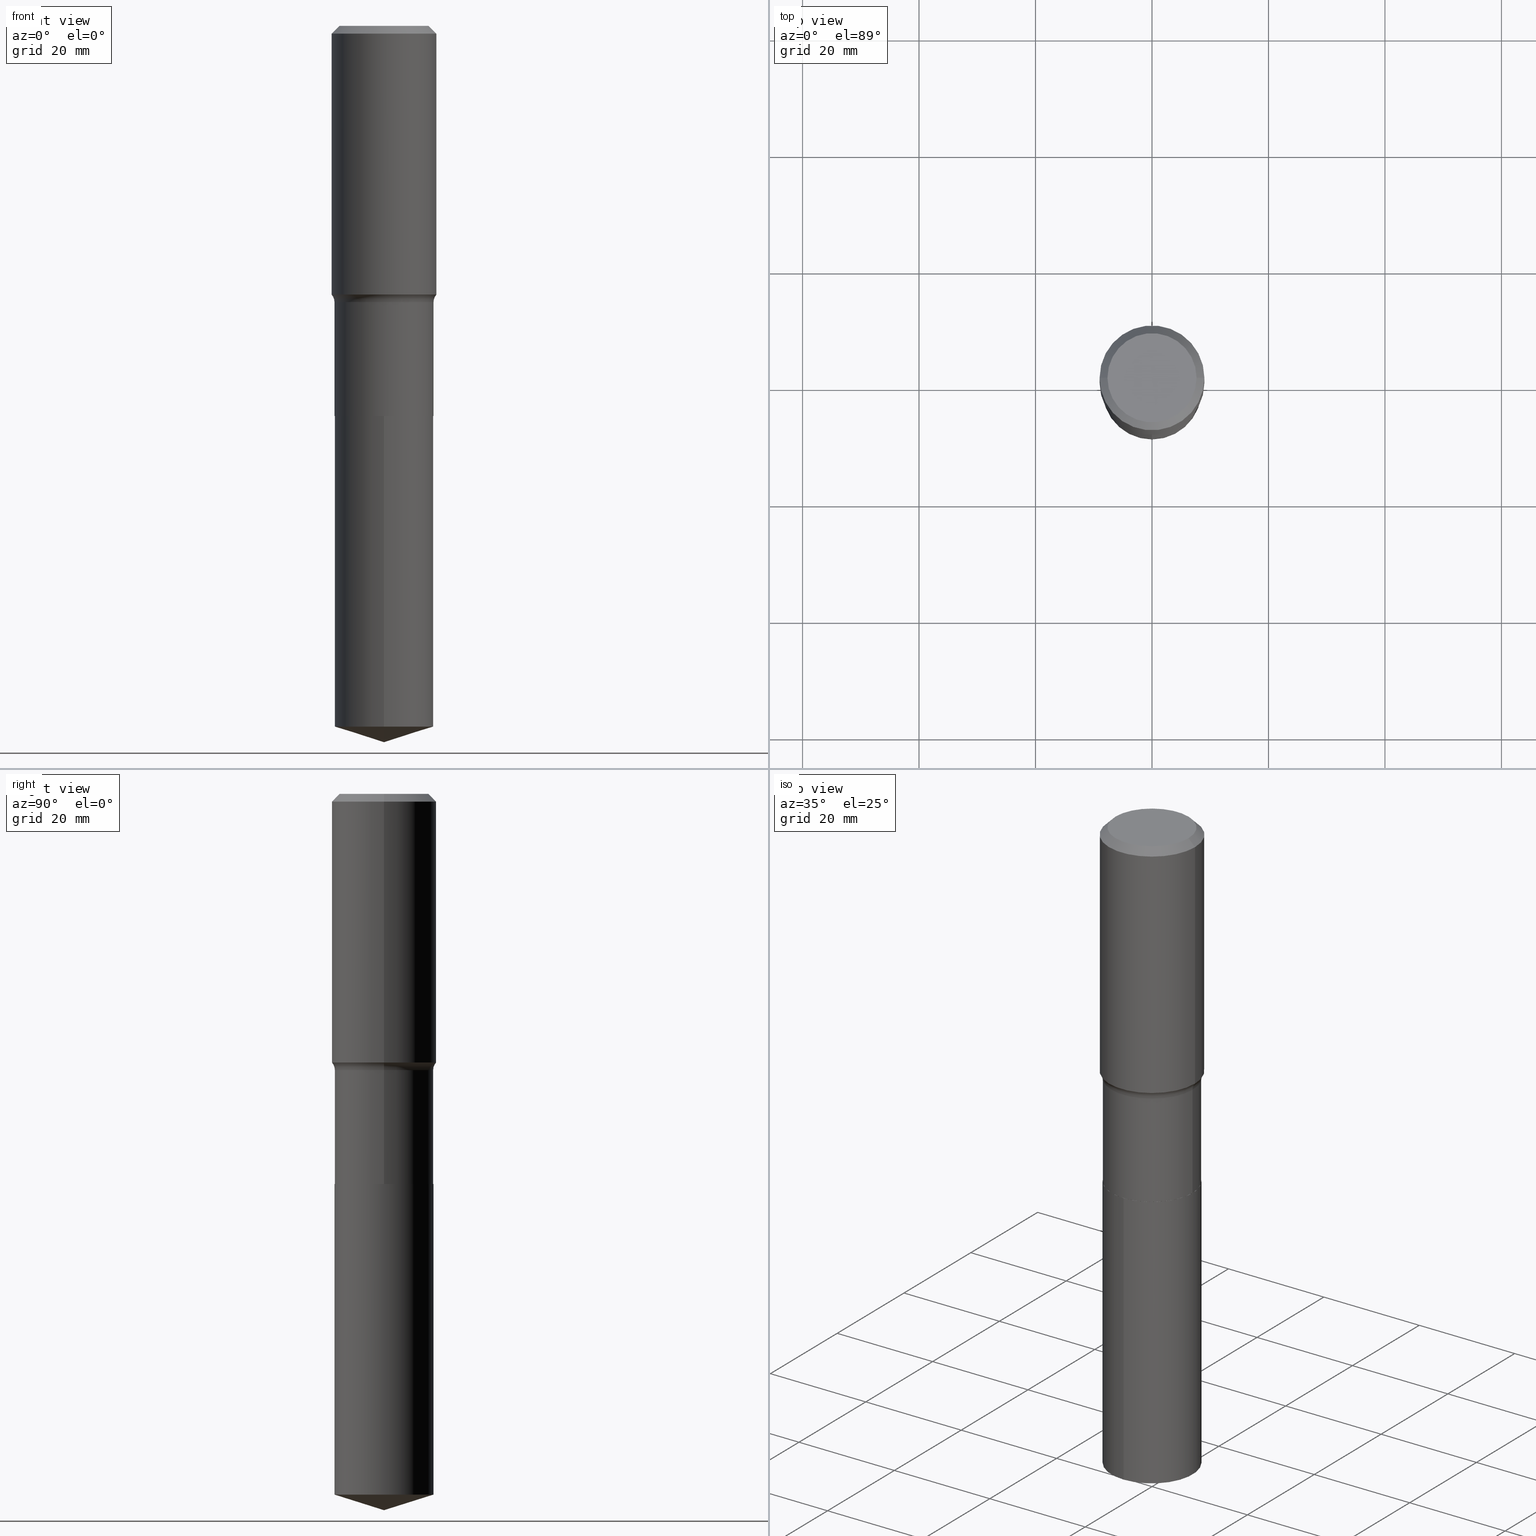
[diagram: canonical four-view strip — front | top / right | iso, engineering-drawing reading convention]
A machine part, canonical four-view strip (front | top / right | iso — engineering-drawing reading convention). The complete STEP part file that produces these views, byte-faithful:
ISO-10303-21;
HEADER;
FILE_DESCRIPTION (( 'STEP AP203' ),
    '1' );
FILE_NAME ('63206.STEP',
    '2024-04-19T15:04:47',
    ( '' ),
    ( '' ),
    'SwSTEP 2.0',
    'SolidWorks 2023',
    '' );
FILE_SCHEMA (( 'CONFIG_CONTROL_DESIGN' ));
ENDSEC;

DATA;
#1 = TOROIDAL_SURFACE ( 'NONE', #149, 0.4126499999999999613, 0.07799999999999999989 ) ;
#2 = ORIENTED_EDGE ( 'NONE', *, *, #280, .T. ) ;
#3 = EDGE_LOOP ( 'NONE', ( #252, #490, #178 ) ) ;
#4 = ADVANCED_FACE ( 'NONE', ( #226 ), #34, .T. ) ;
#5 = CARTESIAN_POINT ( 'NONE',  ( 0.3543500000000001648, -8.815927369643196771E-15, -1.816281952950733025 ) ) ;
#6 = DIRECTION ( 'NONE',  ( 1.000000000000000000, -6.982962677686266711E-15, 4.876239486148337140E-29 ) ) ;
#7 = DIRECTION ( 'NONE',  ( 1.000000000000000000, -6.982962677686266711E-15, 4.876239486148337140E-29 ) ) ;
#8 = LOCAL_TIME ( 11, 4, 47.00000000000000000, #75 ) ;
#9 = CARTESIAN_POINT ( 'NONE',  ( -0.3346499999999999475, -5.487428746790776908E-15, -1.868099999999999650 ) ) ;
#10 = CARTESIAN_POINT ( 'NONE',  ( 6.449434882552060429E-29, -9.208083734931026389E-15, -2.637299999999999756 ) ) ;
#11 = CARTESIAN_POINT ( 'NONE',  ( 1.158368942246441187E-28, -1.653975476720467743E-14, -4.736985260301649348 ) ) ;
#12 = CARTESIAN_POINT ( 'NONE',  ( 0.3543499999999999983, -2.659993786700990170E-15, -0.05315250000000035224 ) ) ;
#13 = DIRECTION ( 'NONE',  ( 0.000000000000000000, 0.000000000000000000, 1.000000000000000000 ) ) ;
#14 = DIRECTION ( 'NONE',  ( 6.982962677686265922E-15, 1.000000000000000000, -3.491795331371053776E-15 ) ) ;
#15 = AXIS2_PLACEMENT_3D ( 'NONE', #406, #77, #350 ) ;
#16 = CARTESIAN_POINT ( 'NONE',  ( -2.336848460087593123E-15, -0.3346500000000164898, -4.736985260301648459 ) ) ;
#17 = DIRECTION ( 'NONE',  ( -2.445468806185136597E-29, 3.491481338843145583E-15, 1.000000000000000000 ) ) ;
#18 = FACE_OUTER_BOUND ( 'NONE', #285, .T. ) ;
#19 = DIRECTION ( 'NONE',  ( 2.438088387897960049E-29, -3.491481338843145188E-15, -1.000000000000000000 ) ) ;
#20 = ORIENTED_EDGE ( 'NONE', *, *, #274, .T. ) ;
#21 = AXIS2_PLACEMENT_3D ( 'NONE', #313, #318, #140 ) ;
#22 = CC_DESIGN_APPROVAL ( #463, ( #338 ) ) ;
#23 = APPROVAL_ROLE ( '' ) ;
#24 = ORIENTED_EDGE ( 'NONE', *, *, #225, .T. ) ;
#25 = PERSON_AND_ORGANIZATION_ROLE ( 'creator' ) ;
#26 = ORIENTED_EDGE ( 'NONE', *, *, #288, .T. ) ;
#27 = PRODUCT_DEFINITION ( 'UNKNOWN', '', #338, #420 ) ;
#28 = APPROVAL_STATUS ( 'not_yet_approved' ) ;
#29 = DIRECTION ( 'NONE',  ( -2.445468806185136877E-29, 3.491481338843145188E-15, 1.000000000000000000 ) ) ;
#30 = AXIS2_PLACEMENT_3D ( 'NONE', #10, #137, #384 ) ;
#31 = COORDINATED_UNIVERSAL_TIME_OFFSET ( 5, 0, .BEHIND. ) ;
#32 = APPROVAL_PERSON_ORGANIZATION ( #296, #463, #23 ) ;
#33 = EDGE_LOOP ( 'NONE', ( #291, #482, #73, #185 ) ) ;
#34 = CYLINDRICAL_SURFACE ( 'NONE', #343, 0.3346500000000000030 ) ;
#35 = CIRCLE ( 'NONE', #319, 0.3346499999999999475 ) ;
#36 = AXIS2_PLACEMENT_3D ( 'NONE', #399, #218, #70 ) ;
#37 = ORIENTED_EDGE ( 'NONE', *, *, #120, .F. ) ;
#38 = DIRECTION ( 'NONE',  ( -2.445468806185136597E-29, 3.491481338843145583E-15, 1.000000000000000000 ) ) ;
#39 = SECURITY_CLASSIFICATION ( '', '', #286 ) ;
#40 = EDGE_CURVE ( 'NONE', #190, #192, #125, .T. ) ;
#41 = VERTEX_POINT ( 'NONE', #5 ) ;
#42 = CARTESIAN_POINT ( 'NONE',  ( 0.3346499999999999475, -2.336848460087708691E-15, 1.631812558020109519E-29 ) ) ;
#43 = CARTESIAN_POINT ( 'NONE',  ( 4.568380276834452925E-29, -6.522436289092878802E-15, -1.868099999999999650 ) ) ;
#44 = CC_DESIGN_PERSON_AND_ORGANIZATION_ASSIGNMENT ( #401, #183, ( #39 ) ) ;
#45 = CC_DESIGN_PERSON_AND_ORGANIZATION_ASSIGNMENT ( #154, #25, ( #338 ) ) ;
#46 = DIRECTION ( 'NONE',  ( -2.445468806185136597E-29, 3.491481338843145583E-15, 1.000000000000000000 ) ) ;
#47 = DIRECTION ( 'NONE',  ( -2.445468806185136597E-29, 3.491481338843145583E-15, 1.000000000000000000 ) ) ;
#48 = CIRCLE ( 'NONE', #310, 0.3543499999999999983 ) ;
#49 = LOCAL_TIME ( 11, 4, 47.00000000000000000, #31 ) ;
#50 = DIRECTION ( 'NONE',  ( -6.982962677686266711E-15, -1.000000000000000000, 3.265319580055895186E-15 ) ) ;
#51 = MECHANICAL_CONTEXT ( 'NONE', #169, 'mechanical' ) ;
#52 = DIRECTION ( 'NONE',  ( 2.445249546374790789E-29, -3.491795331371053776E-15, -1.000000000000000000 ) ) ;
#53 =( NAMED_UNIT ( * ) PLANE_ANGLE_UNIT ( ) SI_UNIT ( $, .RADIAN. ) );
#54 = EDGE_CURVE ( 'NONE', #332, #301, #412, .T. ) ;
#55 = LINE ( 'NONE', #276, #448 ) ;
#56 = CARTESIAN_POINT ( 'NONE',  ( 1.299827807207563322E-30, -1.855809618628615256E-16, -0.05315250000000035224 ) ) ;
#57 = CARTESIAN_POINT ( 'NONE',  ( 0.000000000000000000, 0.000000000000000000, 0.000000000000000000 ) ) ;
#58 = AXIS2_PLACEMENT_3D ( 'NONE', #265, #157, #325 ) ;
#59 = ADVANCED_FACE ( 'NONE', ( #312 ), #299, .T. ) ;
#60 = CC_DESIGN_SECURITY_CLASSIFICATION ( #39, ( #338 ) ) ;
#61 = CARTESIAN_POINT ( 'NONE',  ( 6.449434882552060429E-29, -9.208083734931026389E-15, -2.637299999999999756 ) ) ;
#62 = DIRECTION ( 'NONE',  ( 1.000000000000000000, -6.982962677686268288E-15, 0.000000000000000000 ) ) ;
#63 = SHAPE_DEFINITION_REPRESENTATION ( #302, #224 ) ;
#64 = ORIENTED_EDGE ( 'NONE', *, *, #453, .T. ) ;
#65 = CIRCLE ( 'NONE', #186, 0.3543500000000002204 ) ;
#66 = VECTOR ( 'NONE', #391, 39.37007874015748143 ) ;
#67 = APPROVAL_DATE_TIME ( #369, #463 ) ;
#68 = ADVANCED_FACE ( 'NONE', ( #466 ), #474, .T. ) ;
#69 = ORIENTED_EDGE ( 'NONE', *, *, #428, .T. ) ;
#70 = DIRECTION ( 'NONE',  ( -1.000000000000000000, 7.105427357601001859E-15, 0.000000000000000000 ) ) ;
#71 = DATE_AND_TIME ( #150, #456 ) ;
#72 = CC_DESIGN_DATE_AND_TIME_ASSIGNMENT ( #339, #489, ( #27 ) ) ;
#73 = ORIENTED_EDGE ( 'NONE', *, *, #40, .T. ) ;
#74 = CARTESIAN_POINT ( 'NONE',  ( -0.3011975000000000069, 2.196041382043838255E-15, 4.101342130329452923E-18 ) ) ;
#75 = COORDINATED_UNIVERSAL_TIME_OFFSET ( 5, 0, .BEHIND. ) ;
#76 = VERTEX_POINT ( 'NONE', #12 ) ;
#77 = DIRECTION ( 'NONE',  ( -2.445249546374791350E-29, 3.491795331371053381E-15, 1.000000000000000000 ) ) ;
#78 = AXIS2_PLACEMENT_3D ( 'NONE', #314, #52, #14 ) ;
#79 = CIRCLE ( 'NONE', #383, 0.3346500000000000030 ) ;
#80 = PERSON_AND_ORGANIZATION_ROLE ( 'creator' ) ;
#81 = ORIENTED_EDGE ( 'NONE', *, *, #207, .T. ) ;
#82 = EDGE_LOOP ( 'NONE', ( #459, #122, #487, #306 ) ) ;
#83 = CONICAL_SURFACE ( 'NONE', #15, 124.8659371009154597, 1.265363707695892570 ) ;
#84 = EDGE_LOOP ( 'NONE', ( #227, #378 ) ) ;
#85 = ADVANCED_FACE ( 'NONE', ( #421 ), #484, .T. ) ;
#86 = ORIENTED_EDGE ( 'NONE', *, *, #460, .F. ) ;
#87 = DIRECTION ( 'NONE',  ( -6.982962677686266711E-15, -1.000000000000000000, 3.491481338843145583E-15 ) ) ;
#88 = CARTESIAN_POINT ( 'NONE',  ( 4.441660859178037633E-29, -6.341514544805068471E-15, -1.816281952950733025 ) ) ;
#89 = DIRECTION ( 'NONE',  ( -2.445468806185136597E-29, 3.491481338843145583E-15, 1.000000000000000000 ) ) ;
#90 = CARTESIAN_POINT ( 'NONE',  ( 0.3341500000000000581, -1.154318645434931476E-14, -2.637799999999999923 ) ) ;
#91 = DIRECTION ( 'NONE',  ( 1.000000000000000000, -6.982962677686268288E-15, 0.000000000000000000 ) ) ;
#92 = AXIS2_PLACEMENT_3D ( 'NONE', #99, #273, #358 ) ;
#93 = LINE ( 'NONE', #458, #370 ) ;
#94 = DIRECTION ( 'NONE',  ( -2.445249546374791350E-29, 3.491795331371053381E-15, 1.000000000000000000 ) ) ;
#95 = CARTESIAN_POINT ( 'NONE',  ( -2.336848460087644399E-15, -0.3346500000000092179, -2.637799999999999034 ) ) ;
#96 = CARTESIAN_POINT ( 'NONE',  ( -0.3543499999999999983, 2.288831862975267218E-15, -0.05315250000000035224 ) ) ;
#97 = DIRECTION ( 'NONE',  ( -6.982962677686266711E-15, -1.000000000000000000, 3.265319580055895186E-15 ) ) ;
#98 = DIRECTION ( 'NONE',  ( -2.445249546374791350E-29, 3.491795331371053381E-15, 1.000000000000000000 ) ) ;
#99 = CARTESIAN_POINT ( 'NONE',  ( 0.000000000000000000, 0.000000000000000000, 0.000000000000000000 ) ) ;
#100 = FACE_OUTER_BOUND ( 'NONE', #334, .T. ) ;
#101 = EDGE_CURVE ( 'NONE', #480, #223, #377, .T. ) ;
#102 = AXIS2_PLACEMENT_3D ( 'NONE', #144, #89, #138 ) ;
#103 = MANIFOLD_SOLID_BREP ( 'Body-Move/Copy2[2]', #289 ) ;
#104 = CIRCLE ( 'NONE', #300, 0.3011975000000000069 ) ;
#105 = MANIFOLD_SOLID_BREP ( 'Body-Move/Copy2[1]', #400 ) ;
#106 = APPLICATION_PROTOCOL_DEFINITION ( 'international standard', 'config_control_design', 1994, #169 ) ;
#107 = DIRECTION ( 'NONE',  ( 1.000000000000000000, -6.982962677686266711E-15, 0.000000000000000000 ) ) ;
#108 = CALENDAR_DATE ( 2024, 19, 4 ) ;
#109 = ORIENTED_EDGE ( 'NONE', *, *, #155, .F. ) ;
#110 = ADVANCED_FACE ( 'NONE', ( #100 ), #194, .T. ) ;
#111 = DIRECTION ( 'NONE',  ( -2.445249546374791350E-29, 3.491795331371053381E-15, 1.000000000000000000 ) ) ;
#112 = CALENDAR_DATE ( 2024, 19, 4 ) ;
#113 = EDGE_LOOP ( 'NONE', ( #443, #337, #256, #409 ) ) ;
#114 =( GEOMETRIC_REPRESENTATION_CONTEXT ( 3 ) GLOBAL_UNCERTAINTY_ASSIGNED_CONTEXT ( ( #335 ) ) GLOBAL_UNIT_ASSIGNED_CONTEXT ( ( #434, #53, #430 ) ) REPRESENTATION_CONTEXT ( 'NONE', 'WORKASPACE' ) );
#115 = LOCAL_TIME ( 11, 4, 47.00000000000000000, #365 ) ;
#116 = ORIENTED_EDGE ( 'NONE', *, *, #101, .T. ) ;
#117 = ORIENTED_EDGE ( 'NONE', *, *, #54, .T. ) ;
#118 = CYLINDRICAL_SURFACE ( 'NONE', #229, 0.3543500000000001648 ) ;
#119 = DATE_AND_TIME ( #112, #292 ) ;
#120 = EDGE_CURVE ( 'NONE', #373, #41, #65, .T. ) ;
#121 = AXIS2_PLACEMENT_3D ( 'NONE', #43, #38, #199 ) ;
#122 = ORIENTED_EDGE ( 'NONE', *, *, #440, .T. ) ;
#123 = ORIENTED_EDGE ( 'NONE', *, *, #470, .T. ) ;
#124 = ADVANCED_FACE ( 'NONE', ( #236 ), #136, .F. ) ;
#125 = LINE ( 'NONE', #42, #254 ) ;
#126 = DIRECTION ( 'NONE',  ( -2.445468806185136597E-29, 3.491481338843145583E-15, 1.000000000000000000 ) ) ;
#127 = AXIS2_PLACEMENT_3D ( 'NONE', #278, #98, #50 ) ;
#128 = ORGANIZATION ( 'UNSPECIFIED', 'UNSPECIFIED', '' ) ;
#129 = CARTESIAN_POINT ( 'NONE',  ( -1.002970424325033577E-46, 1.431975951230896212E-32, 4.101342130344485961E-18 ) ) ;
#130 = VERTEX_POINT ( 'NONE', #433 ) ;
#131 = DIRECTION ( 'NONE',  ( -2.445249546374791070E-29, 3.491795331371053776E-15, 1.000000000000000000 ) ) ;
#132 = DIRECTION ( 'NONE',  ( -2.445249546374791350E-29, 3.491795331371053381E-15, 1.000000000000000000 ) ) ;
#133 = LINE ( 'NONE', #437, #66 ) ;
#134 = DIRECTION ( 'NONE',  ( 1.000000000000000000, -6.982962677686266711E-15, 0.000000000000000000 ) ) ;
#135 = DIRECTION ( 'NONE',  ( -6.982962677686266711E-15, -1.000000000000000000, 3.265319580055895186E-15 ) ) ;
#136 = TOROIDAL_SURFACE ( 'NONE', #393, 0.4126499999999999613, 0.07799999999999999989 ) ;
#137 = DIRECTION ( 'NONE',  ( -2.445468806185136597E-29, 3.491481338843145583E-15, 1.000000000000000000 ) ) ;
#138 = DIRECTION ( 'NONE',  ( 1.000000000000000000, -6.982962677686268288E-15, 0.000000000000000000 ) ) ;
#139 = CARTESIAN_POINT ( 'NONE',  ( -0.3543500000000001648, 2.517808184165916180E-15, -1.743024649231826627E-29 ) ) ;
#140 = DIRECTION ( 'NONE',  ( -1.000000000000000000, 6.982962677686266711E-15, 0.000000000000000000 ) ) ;
#141 = EDGE_CURVE ( 'NONE', #130, #371, #308, .T. ) ;
#142 = DIRECTION ( 'NONE',  ( -6.982962677686266711E-15, -1.000000000000000000, 3.500519750498693388E-15 ) ) ;
#143 = CARTESIAN_POINT ( 'NONE',  ( -5.014852121625167883E-47, 7.159879756154481060E-33, 2.050671065172242981E-18 ) ) ;
#144 = CARTESIAN_POINT ( 'NONE',  ( 6.450657616955153231E-29, -9.209829475600448681E-15, -2.637799999999999923 ) ) ;
#145 = CARTESIAN_POINT ( 'NONE',  ( 0.3543500000000001648, -2.474412824838129483E-15, 1.727873240503290590E-29 ) ) ;
#146 = EDGE_CURVE ( 'NONE', #374, #76, #163, .T. ) ;
#147 = EDGE_LOOP ( 'NONE', ( #230, #24, #345, #216 ) ) ;
#148 = VERTEX_POINT ( 'NONE', #425 ) ;
#149 = AXIS2_PLACEMENT_3D ( 'NONE', #326, #275, #267 ) ;
#150 = CALENDAR_DATE ( 2024, 19, 4 ) ;
#151 = EDGE_LOOP ( 'NONE', ( #449, #191, #64, #298 ) ) ;
#152 = FACE_OUTER_BOUND ( 'NONE', #151, .T. ) ;
#153 = CARTESIAN_POINT ( 'NONE',  ( 1.158368942246441187E-28, -1.653975476720467743E-14, -4.736985260301649348 ) ) ;
#154 = PERSON_AND_ORGANIZATION ( #304, #128 ) ;
#155 = EDGE_CURVE ( 'NONE', #130, #375, #201, .T. ) ;
#156 = VERTEX_POINT ( 'NONE', #9 ) ;
#157 = DIRECTION ( 'NONE',  ( -2.445468806185136597E-29, 3.491481338843145583E-15, 1.000000000000000000 ) ) ;
#158 = CONICAL_SURFACE ( 'NONE', #21, 0.3543499999999999983, 0.7853981633974450594 ) ;
#159 = ORIENTED_EDGE ( 'NONE', *, *, #305, .F. ) ;
#160 = ADVANCED_FACE ( 'NONE', ( #171 ), #167, .F. ) ;
#161 = DIRECTION ( 'NONE',  ( -2.445249546374791350E-29, 3.491795331371053381E-15, 1.000000000000000000 ) ) ;
#162 = ORIENTED_EDGE ( 'NONE', *, *, #54, .F. ) ;
#163 = CIRCLE ( 'NONE', #435, 0.3543499999999999983 ) ;
#164 = CARTESIAN_POINT ( 'NONE',  ( 4.568380276834452925E-29, -6.522436289092878802E-15, -1.868099999999999650 ) ) ;
#165 = CARTESIAN_POINT ( 'NONE',  ( 6.450657616955153231E-29, -9.209829475600448681E-15, -2.637799999999999923 ) ) ;
#166 = CARTESIAN_POINT ( 'NONE',  ( 0.3346499999999999475, -8.859284749180587099E-15, -1.868099999999999650 ) ) ;
#167 = PLANE ( 'NONE',  #78 ) ;
#168 = EDGE_CURVE ( 'NONE', #233, #148, #193, .T. ) ;
#169 = APPLICATION_CONTEXT ( 'configuration controlled 3d designs of mechanical parts and assemblies' ) ;
#170 = CARTESIAN_POINT ( 'NONE',  ( 0.3346500000000000030, -1.154493219501873547E-14, -2.637299999999999756 ) ) ;
#171 = FACE_OUTER_BOUND ( 'NONE', #342, .T. ) ;
#172 = AXIS2_PLACEMENT_3D ( 'NONE', #56, #388, #462 ) ;
#173 = EDGE_CURVE ( 'NONE', #192, #156, #35, .T. ) ;
#174 = FACE_OUTER_BOUND ( 'NONE', #84, .T. ) ;
#175 = CARTESIAN_POINT ( 'NONE',  ( 6.450657616955153231E-29, -9.209829475600448681E-15, -2.637799999999999923 ) ) ;
#176 = DIRECTION ( 'NONE',  ( -1.000000000000000000, 6.982962677686265922E-15, -4.876176775795935793E-29 ) ) ;
#177 = ADVANCED_FACE ( 'NONE', ( #203 ), #363, .T. ) ;
#178 = ORIENTED_EDGE ( 'NONE', *, *, #225, .F. ) ;
#179 = AXIS2_PLACEMENT_3D ( 'NONE', #143, #19, #176 ) ;
#180 = APPROVAL_STATUS ( 'not_yet_approved' ) ;
#181 = CC_DESIGN_PERSON_AND_ORGANIZATION_ASSIGNMENT ( #293, #80, ( #27 ) ) ;
#182 = ORIENTED_EDGE ( 'NONE', *, *, #207, .F. ) ;
#183 = PERSON_AND_ORGANIZATION_ROLE ( 'classification_officer' ) ;
#184 = APPLICATION_PROTOCOL_DEFINITION ( 'international standard', 'config_control_design', 1994, #415 ) ;
#185 = ORIENTED_EDGE ( 'NONE', *, *, #359, .F. ) ;
#186 = AXIS2_PLACEMENT_3D ( 'NONE', #270, #327, #476 ) ;
#187 = AXIS2_PLACEMENT_3D ( 'NONE', #88, #235, #107 ) ;
#188 = APPROVAL_PERSON_ORGANIZATION ( #251, #423, #446 ) ;
#189 = CALENDAR_DATE ( 2024, 19, 4 ) ;
#190 = VERTEX_POINT ( 'NONE', #170 ) ;
#191 = ORIENTED_EDGE ( 'NONE', *, *, #120, .T. ) ;
#192 = VERTEX_POINT ( 'NONE', #166 ) ;
#193 = CIRCLE ( 'NONE', #246, 0.3346500000000000030 ) ;
#194 = CONICAL_SURFACE ( 'NONE', #215, 0.3341500000000000581, 0.7853981633972434429 ) ;
#195 = VECTOR ( 'NONE', #29, 39.37007874015748143 ) ;
#196 = EDGE_LOOP ( 'NONE', ( #117, #491 ) ) ;
#197 = ORIENTED_EDGE ( 'NONE', *, *, #440, .F. ) ;
#198 = DIRECTION ( 'NONE',  ( -2.445468806185136597E-29, 3.491481338843145583E-15, 1.000000000000000000 ) ) ;
#199 = DIRECTION ( 'NONE',  ( 1.000000000000000000, -6.982962677686266711E-15, 0.000000000000000000 ) ) ;
#200 = AXIS2_PLACEMENT_3D ( 'NONE', #221, #87, #452 ) ;
#201 = LINE ( 'NONE', #352, #281 ) ;
#202 = CARTESIAN_POINT ( 'NONE',  ( -0.3346500000000000030, -5.487428746790776119E-15, -2.637299999999999756 ) ) ;
#203 = FACE_OUTER_BOUND ( 'NONE', #82, .T. ) ;
#204 = DIRECTION ( 'NONE',  ( -2.445468806185136597E-29, 3.491481338843145583E-15, 1.000000000000000000 ) ) ;
#205 = DIRECTION ( 'NONE',  ( -2.445249546374791070E-29, 3.491795331371053776E-15, 1.000000000000000000 ) ) ;
#206 = CARTESIAN_POINT ( 'NONE',  ( 4.568380276834452925E-29, -6.522436289092878802E-15, -1.868099999999999650 ) ) ;
#207 = EDGE_CURVE ( 'NONE', #190, #375, #407, .T. ) ;
#208 = DIRECTION ( 'NONE',  ( 1.000000000000000000, -6.982962677686266711E-15, 0.000000000000000000 ) ) ;
#209 = AXIS2_PLACEMENT_3D ( 'NONE', #129, #198, #7 ) ;
#210 = DIRECTION ( 'NONE',  ( -2.445249546374791350E-29, 3.491795331371053381E-15, 1.000000000000000000 ) ) ;
#211 = VECTOR ( 'NONE', #361, 39.37007874015748143 ) ;
#212 = CARTESIAN_POINT ( 'NONE',  ( 0.000000000000000000, 0.000000000000000000, 0.000000000000000000 ) ) ;
#213 = LINE ( 'NONE', #139, #211 ) ;
#214 = DATE_TIME_ROLE ( 'classification_date' ) ;
#215 = AXIS2_PLACEMENT_3D ( 'NONE', #472, #204, #91 ) ;
#216 = ORIENTED_EDGE ( 'NONE', *, *, #470, .F. ) ;
#217 = VECTOR ( 'NONE', #131, 39.37007874015748143 ) ;
#218 = DIRECTION ( 'NONE',  ( 7.105427357601001859E-15, 1.000000000000000000, -3.491481338843145583E-15 ) ) ;
#219 = APPROVAL_ROLE ( '' ) ;
#220 = EDGE_LOOP ( 'NONE', ( #81, #441, #250, #451 ) ) ;
#221 = CARTESIAN_POINT ( 'NONE',  ( 0.4126499999999999613, -9.403955838040115145E-15, -1.868099999999999650 ) ) ;
#222 = CIRCLE ( 'NONE', #187, 0.3543500000000002204 ) ;
#223 = VERTEX_POINT ( 'NONE', #311 ) ;
#224 = ADVANCED_BREP_SHAPE_REPRESENTATION ( '63206', ( #105, #103, #259 ), #114 ) ;
#225 = EDGE_CURVE ( 'NONE', #148, #233, #469, .T. ) ;
#226 = FACE_OUTER_BOUND ( 'NONE', #147, .T. ) ;
#227 = ORIENTED_EDGE ( 'NONE', *, *, #376, .F. ) ;
#228 = EDGE_CURVE ( 'NONE', #233, #480, #93, .T. ) ;
#229 = AXIS2_PLACEMENT_3D ( 'NONE', #346, #126, #234 ) ;
#230 = ORIENTED_EDGE ( 'NONE', *, *, #347, .F. ) ;
#231 = ADVANCED_FACE ( 'NONE', ( #354 ), #320, .T. ) ;
#232 = CARTESIAN_POINT ( 'NONE',  ( 0.000000000000000000, 0.000000000000000000, 0.000000000000000000 ) ) ;
#233 = VERTEX_POINT ( 'NONE', #16 ) ;
#234 = DIRECTION ( 'NONE',  ( 1.000000000000000000, -6.982962677686265922E-15, 4.876176775795935793E-29 ) ) ;
#235 = DIRECTION ( 'NONE',  ( -2.445468806185136597E-29, 3.491481338843145583E-15, 1.000000000000000000 ) ) ;
#236 = FACE_OUTER_BOUND ( 'NONE', #408, .T. ) ;
#237 = DIRECTION ( 'NONE',  ( 0.7071067811864026886, -2.468850131080739687E-15, 0.7071067811866923458 ) ) ;
#238 = ADVANCED_FACE ( 'NONE', ( #174 ), #324, .F. ) ;
#239 = DIRECTION ( 'NONE',  ( -0.7071067811864026886, 7.493145998869830357E-15, 0.7071067811866923458 ) ) ;
#240 = CC_DESIGN_PERSON_AND_ORGANIZATION_ASSIGNMENT ( #333, #362, ( #338 ) ) ;
#241 = CARTESIAN_POINT ( 'NONE',  ( 6.450657616955153231E-29, -9.209829475600448681E-15, -2.637799999999999923 ) ) ;
#242 = CIRCLE ( 'NONE', #36, 0.07800000000000002764 ) ;
#243 = PERSON_AND_ORGANIZATION ( #304, #128 ) ;
#244 = ORIENTED_EDGE ( 'NONE', *, *, #173, .T. ) ;
#245 = COORDINATED_UNIVERSAL_TIME_OFFSET ( 5, 0, .BEHIND. ) ;
#246 = AXIS2_PLACEMENT_3D ( 'NONE', #153, #111, #97 ) ;
#247 = VECTOR ( 'NONE', #237, 39.37007874015748143 ) ;
#248 = ORIENTED_EDGE ( 'NONE', *, *, #146, .T. ) ;
#249 = EDGE_CURVE ( 'NONE', #41, #373, #222, .T. ) ;
#250 = ORIENTED_EDGE ( 'NONE', *, *, #173, .F. ) ;
#251 = PERSON_AND_ORGANIZATION ( #304, #128 ) ;
#252 = ORIENTED_EDGE ( 'NONE', *, *, #280, .F. ) ;
#253 = CARTESIAN_POINT ( 'NONE',  ( 0.3341500000000000581, -1.154318645434931476E-14, -2.637799999999999923 ) ) ;
#254 = VECTOR ( 'NONE', #341, 39.37007874015748143 ) ;
#255 = VECTOR ( 'NONE', #295, 39.37007874015748143 ) ;
#256 = ORIENTED_EDGE ( 'NONE', *, *, #101, .F. ) ;
#257 = EDGE_CURVE ( 'NONE', #373, #156, #242, .T. ) ;
#258 = AXIS2_PLACEMENT_3D ( 'NONE', #212, #322, #429 ) ;
#259 = AXIS2_PLACEMENT_3D ( 'NONE', #57, #13, #317 ) ;
#260 = ORIENTED_EDGE ( 'NONE', *, *, #249, .T. ) ;
#261 = ADVANCED_FACE ( 'NONE', ( #387 ), #158, .T. ) ;
#262 = DIRECTION ( 'NONE',  ( -2.445468806185136597E-29, 3.491481338843145583E-15, 1.000000000000000000 ) ) ;
#263 = DIRECTION ( 'NONE',  ( -2.445468806185136597E-29, 3.491481338843145583E-15, 1.000000000000000000 ) ) ;
#264 = DIRECTION ( 'NONE',  ( -2.445468806185136597E-29, 3.491481338843145583E-15, 1.000000000000000000 ) ) ;
#265 = CARTESIAN_POINT ( 'NONE',  ( 6.450657616955153231E-29, -9.209829475600448681E-15, -2.637799999999999923 ) ) ;
#266 = CARTESIAN_POINT ( 'NONE',  ( -0.3543500000000001648, -3.823706360639151503E-15, -1.816281952950733025 ) ) ;
#267 = DIRECTION ( 'NONE',  ( 1.000000000000000000, -6.982962677686266711E-15, 4.883557194083112901E-29 ) ) ;
#268 = EDGE_CURVE ( 'NONE', #375, #190, #424, .T. ) ;
#269 = VECTOR ( 'NONE', #475, 39.37007874015748854 ) ;
#270 = CARTESIAN_POINT ( 'NONE',  ( 4.441660859178037633E-29, -6.341514544805068471E-15, -1.816281952950733025 ) ) ;
#271 = CARTESIAN_POINT ( 'NONE',  ( 1.184112092831992758E-28, -1.690901889216432410E-14, -4.842500000000000249 ) ) ;
#272 = CYLINDRICAL_SURFACE ( 'NONE', #336, 0.3346499999999999475 ) ;
#273 = DIRECTION ( 'NONE',  ( -2.445468806185136597E-29, 3.491481338843145583E-15, 1.000000000000000000 ) ) ;
#274 = EDGE_CURVE ( 'NONE', #371, #190, #315, .T. ) ;
#275 = DIRECTION ( 'NONE',  ( -2.445468806185136597E-29, 3.491481338843145583E-15, 1.000000000000000000 ) ) ;
#276 = CARTESIAN_POINT ( 'NONE',  ( 1.184228779850625277E-28, -1.690736239318409568E-14, -4.842500000000000249 ) ) ;
#277 = DIRECTION ( 'NONE',  ( -2.438088387897960049E-29, 3.491481338843145188E-15, 1.000000000000000000 ) ) ;
#278 = CARTESIAN_POINT ( 'NONE',  ( 6.450657616955153231E-29, -9.209829475600448681E-15, -2.637799999999999923 ) ) ;
#279 = DIRECTION ( 'NONE',  ( -6.982962677686266711E-15, -1.000000000000000000, 3.265319580055895186E-15 ) ) ;
#280 = EDGE_CURVE ( 'NONE', #410, #148, #55, .T. ) ;
#281 = VECTOR ( 'NONE', #239, 39.37007874015748143 ) ;
#282 = CIRCLE ( 'NONE', #200, 0.07800000000000002764 ) ;
#283 = ADVANCED_FACE ( 'NONE', ( #431 ), #272, .T. ) ;
#284 = PERSON_AND_ORGANIZATION ( #304, #128 ) ;
#285 = EDGE_LOOP ( 'NONE', ( #403, #447, #330, #244 ) ) ;
#286 = SECURITY_CLASSIFICATION_LEVEL ( 'unclassified' ) ;
#287 = ORIENTED_EDGE ( 'NONE', *, *, #168, .F. ) ;
#288 = EDGE_CURVE ( 'NONE', #332, #374, #427, .T. ) ;
#289 = CLOSED_SHELL ( 'NONE', ( #110, #177, #68, #124, #231, #283, #419, #364, #261, #479, #238, #59 ) ) ;
#290 = AXIS2_PLACEMENT_3D ( 'NONE', #416, #277, #432 ) ;
#291 = ORIENTED_EDGE ( 'NONE', *, *, #368, .F. ) ;
#292 = LOCAL_TIME ( 11, 4, 47.00000000000000000, #331 ) ;
#293 = PERSON_AND_ORGANIZATION ( #304, #128 ) ;
#294 = ORIENTED_EDGE ( 'NONE', *, *, #274, .F. ) ;
#295 = DIRECTION ( 'NONE',  ( -0.7071067811865452413, 2.468850131082233000E-15, -0.7071067811865497932 ) ) ;
#296 = PERSON_AND_ORGANIZATION ( #304, #128 ) ;
#297 = EDGE_LOOP ( 'NONE', ( #86, #2, #287 ) ) ;
#298 = ORIENTED_EDGE ( 'NONE', *, *, #146, .F. ) ;
#299 = CONICAL_SURFACE ( 'NONE', #58, 0.3341500000000000581, 0.7853981633972434429 ) ;
#300 = AXIS2_PLACEMENT_3D ( 'NONE', #382, #47, #6 ) ;
#301 = VERTEX_POINT ( 'NONE', #380 ) ;
#302 = PRODUCT_DEFINITION_SHAPE ( 'NONE', 'NONE',  #27 ) ;
#303 = DIRECTION ( 'NONE',  ( -6.982962677686266711E-15, -1.000000000000000000, 3.265319580055895186E-15 ) ) ;
#304 = PERSON ( 'UNSPECIFIED', 'UNSPECIFIED', 'UNSPECIFIED', ('UNSPECIFIED'), ('UNSPECIFIED'), ('UNSPECIFIED') ) ;
#305 = EDGE_CURVE ( 'NONE', #76, #374, #48, .T. ) ;
#306 = ORIENTED_EDGE ( 'NONE', *, *, #288, .F. ) ;
#307 = CARTESIAN_POINT ( 'NONE',  ( -0.3346499999999999475, 2.377831265221174899E-15, -1.646121627953803670E-29 ) ) ;
#308 = CIRCLE ( 'NONE', #102, 0.3341500000000000581 ) ;
#309 = PRODUCT ( '63206', '63206', '', ( #51 ) ) ;
#310 = AXIS2_PLACEMENT_3D ( 'NONE', #461, #262, #488 ) ;
#311 = CARTESIAN_POINT ( 'NONE',  ( 2.377831265221291256E-15, 0.3346499999999907882, -2.637800000000000811 ) ) ;
#312 = FACE_OUTER_BOUND ( 'NONE', #366, .T. ) ;
#313 = CARTESIAN_POINT ( 'NONE',  ( 1.299827807207563322E-30, -1.855809618628615256E-16, -0.05315250000000035224 ) ) ;
#314 = CARTESIAN_POINT ( 'NONE',  ( 6.450657616955153231E-29, -9.209829475600448681E-15, -2.637799999999999923 ) ) ;
#315 = LINE ( 'NONE', #90, #247 ) ;
#316 = CARTESIAN_POINT ( 'NONE',  ( -8.442796788826223180E-28, 1.205640664979184574E-13, 34.52757874015748030 ) ) ;
#317 = DIRECTION ( 'NONE',  ( 1.000000000000000000, 0.000000000000000000, 0.000000000000000000 ) ) ;
#318 = DIRECTION ( 'NONE',  ( 2.445468806185136597E-29, -3.491481338843145583E-15, -1.000000000000000000 ) ) ;
#319 = AXIS2_PLACEMENT_3D ( 'NONE', #164, #471, #208 ) ;
#320 = CYLINDRICAL_SURFACE ( 'NONE', #92, 0.3346499999999999475 ) ;
#321 = CC_DESIGN_APPROVAL ( #423, ( #39 ) ) ;
#322 = DIRECTION ( 'NONE',  ( -2.445468806185136597E-29, 3.491481338843145583E-15, 1.000000000000000000 ) ) ;
#323 = EDGE_CURVE ( 'NONE', #41, #192, #282, .T. ) ;
#324 = PLANE ( 'NONE',  #290 ) ;
#325 = DIRECTION ( 'NONE',  ( 1.000000000000000000, -6.982962677686268288E-15, 0.000000000000000000 ) ) ;
#326 = CARTESIAN_POINT ( 'NONE',  ( 4.568380276834452925E-29, -6.522436289092878802E-15, -1.868099999999999650 ) ) ;
#327 = DIRECTION ( 'NONE',  ( -2.445468806185136597E-29, 3.491481338843145583E-15, 1.000000000000000000 ) ) ;
#328 = DIRECTION ( 'NONE',  ( -2.445468806185136877E-29, 3.491481338843145188E-15, 1.000000000000000000 ) ) ;
#329 = APPROVAL_STATUS ( 'not_yet_approved' ) ;
#330 = ORIENTED_EDGE ( 'NONE', *, *, #323, .T. ) ;
#331 = COORDINATED_UNIVERSAL_TIME_OFFSET ( 5, 0, .BEHIND. ) ;
#332 = VERTEX_POINT ( 'NONE', #74 ) ;
#333 = PERSON_AND_ORGANIZATION ( #304, #128 ) ;
#334 = EDGE_LOOP ( 'NONE', ( #439, #450, #182, #294 ) ) ;
#335 = UNCERTAINTY_MEASURE_WITH_UNIT (LENGTH_MEASURE( 1.000000000000000082E-05 ), #434, 'distance_accuracy_value', 'NONE');
#336 = AXIS2_PLACEMENT_3D ( 'NONE', #232, #263, #381 ) ;
#337 = ORIENTED_EDGE ( 'NONE', *, *, #347, .T. ) ;
#338 = PRODUCT_DEFINITION_FORMATION_WITH_SPECIFIED_SOURCE ( 'ANY', '', #309, .NOT_KNOWN. ) ;
#339 = DATE_AND_TIME ( #189, #8 ) ;
#340 = EDGE_LOOP ( 'NONE', ( #260, #69, #159, #414 ) ) ;
#341 = DIRECTION ( 'NONE',  ( -2.445468806185136877E-29, 3.491481338843145188E-15, 1.000000000000000000 ) ) ;
#342 = EDGE_LOOP ( 'NONE', ( #116, #123 ) ) ;
#343 = AXIS2_PLACEMENT_3D ( 'NONE', #165, #161, #303 ) ;
#344 = AXIS2_PLACEMENT_3D ( 'NONE', #360, #389, #279 ) ;
#345 = ORIENTED_EDGE ( 'NONE', *, *, #228, .T. ) ;
#346 = CARTESIAN_POINT ( 'NONE',  ( 0.000000000000000000, 0.000000000000000000, 0.000000000000000000 ) ) ;
#347 = EDGE_CURVE ( 'NONE', #148, #223, #348, .T. ) ;
#348 = LINE ( 'NONE', #444, #217 ) ;
#349 = ORIENTED_EDGE ( 'NONE', *, *, #257, .T. ) ;
#350 = DIRECTION ( 'NONE',  ( -6.982962677686266711E-15, -1.000000000000000000, 3.500519750498693388E-15 ) ) ;
#351 = APPROVAL_PERSON_ORGANIZATION ( #284, #392, #219 ) ;
#352 = CARTESIAN_POINT ( 'NONE',  ( -0.3341500000000000581, -6.835550924058073497E-15, -2.637799999999999923 ) ) ;
#353 = CARTESIAN_POINT ( 'NONE',  ( 1.299827807207563322E-30, -1.855809618628615256E-16, -0.05315250000000035224 ) ) ;
#354 = FACE_OUTER_BOUND ( 'NONE', #220, .T. ) ;
#355 = DIRECTION ( 'NONE',  ( -2.445468806185136597E-29, 3.491481338843145583E-15, 1.000000000000000000 ) ) ;
#356 =( LENGTH_UNIT ( ) NAMED_UNIT ( * ) SI_UNIT ( $, .METRE. ) );
#357 = CIRCLE ( 'NONE', #468, 0.3341500000000000581 ) ;
#358 = DIRECTION ( 'NONE',  ( 1.000000000000000000, -6.982962677686266711E-15, 4.876176775795935232E-29 ) ) ;
#359 = EDGE_CURVE ( 'NONE', #156, #192, #413, .T. ) ;
#360 = CARTESIAN_POINT ( 'NONE',  ( 6.450657616955153231E-29, -9.209829475600448681E-15, -2.637799999999999923 ) ) ;
#361 = DIRECTION ( 'NONE',  ( -2.445468806185136877E-29, 3.491481338843145188E-15, 1.000000000000000000 ) ) ;
#362 = PERSON_AND_ORGANIZATION_ROLE ( 'design_supplier' ) ;
#363 = CONICAL_SURFACE ( 'NONE', #172, 0.3543499999999999983, 0.7853981633974450594 ) ;
#364 = ADVANCED_FACE ( 'NONE', ( #152 ), #118, .T. ) ;
#365 = COORDINATED_UNIVERSAL_TIME_OFFSET ( 5, 0, .BEHIND. ) ;
#366 = EDGE_LOOP ( 'NONE', ( #109, #417, #20, #405 ) ) ;
#367 = EDGE_CURVE ( 'NONE', #301, #332, #104, .T. ) ;
#368 = EDGE_CURVE ( 'NONE', #375, #156, #411, .T. ) ;
#369 = DATE_AND_TIME ( #108, #115 ) ;
#370 = VECTOR ( 'NONE', #205, 39.37007874015748143 ) ;
#371 = VERTEX_POINT ( 'NONE', #253 ) ;
#372 = ADVANCED_FACE ( 'NONE', ( #455 ), #83, .T. ) ;
#373 = VERTEX_POINT ( 'NONE', #266 ) ;
#374 = VERTEX_POINT ( 'NONE', #418 ) ;
#375 = VERTEX_POINT ( 'NONE', #202 ) ;
#376 = EDGE_CURVE ( 'NONE', #371, #130, #357, .T. ) ;
#377 = CIRCLE ( 'NONE', #127, 0.3346500000000000030 ) ;
#378 = ORIENTED_EDGE ( 'NONE', *, *, #141, .F. ) ;
#379 = EDGE_LOOP ( 'NONE', ( #197, #162, #26, #248 ) ) ;
#380 = CARTESIAN_POINT ( 'NONE',  ( 0.3011975000000000069, -2.341481636528497322E-15, 4.101342130360026675E-18 ) ) ;
#381 = DIRECTION ( 'NONE',  ( 1.000000000000000000, -6.982962677686266711E-15, 4.876176775795935232E-29 ) ) ;
#382 = CARTESIAN_POINT ( 'NONE',  ( -1.002970424325033577E-46, 1.431975951230896212E-32, 4.101342130344485961E-18 ) ) ;
#383 = AXIS2_PLACEMENT_3D ( 'NONE', #175, #210, #135 ) ;
#384 = DIRECTION ( 'NONE',  ( 1.000000000000000000, -6.982962677686267499E-15, 0.000000000000000000 ) ) ;
#385 = DIRECTION ( 'NONE',  ( 1.000000000000000000, -6.982962677686266711E-15, 4.883557194083112901E-29 ) ) ;
#386 = LENGTH_MEASURE_WITH_UNIT ( LENGTH_MEASURE( 0.02539999999999999897 ), #356 );
#387 = FACE_OUTER_BOUND ( 'NONE', #379, .T. ) ;
#388 = DIRECTION ( 'NONE',  ( 2.445468806185136597E-29, -3.491481338843145583E-15, -1.000000000000000000 ) ) ;
#389 = DIRECTION ( 'NONE',  ( -2.445249546374791350E-29, 3.491795331371053381E-15, 1.000000000000000000 ) ) ;
#390 = DIRECTION ( 'NONE',  ( 1.000000000000000000, -6.982962677686267499E-15, 0.000000000000000000 ) ) ;
#391 = DIRECTION ( 'NONE',  ( 0.7071067811865452413, -7.319954787623248157E-15, -0.7071067811865497932 ) ) ;
#392 = APPROVAL ( #329, 'UNSPECIFIED' ) ;
#393 = AXIS2_PLACEMENT_3D ( 'NONE', #206, #355, #385 ) ;
#394 = AXIS2_PLACEMENT_3D ( 'NONE', #11, #132, #465 ) ;
#395 = CARTESIAN_POINT ( 'NONE',  ( 1.184112092831992534E-28, -1.690901889216432410E-14, -4.842500000000000249 ) ) ;
#396 = CC_DESIGN_DATE_AND_TIME_ASSIGNMENT ( #438, #214, ( #39 ) ) ;
#397 = DIMENSIONAL_EXPONENTS ( 1.000000000000000000, 0.000000000000000000, 0.000000000000000000, 0.000000000000000000, 0.000000000000000000, 0.000000000000000000, 0.000000000000000000 ) ;
#398 = PERSON_AND_ORGANIZATION_ROLE ( 'design_owner' ) ;
#399 = CARTESIAN_POINT ( 'NONE',  ( -0.4126499999999999613, -3.590381689978825660E-15, -1.868099999999999650 ) ) ;
#400 = CLOSED_SHELL ( 'NONE', ( #492, #85, #372, #4, #160 ) ) ;
#401 = PERSON_AND_ORGANIZATION ( #304, #128 ) ;
#402 = ORIENTED_EDGE ( 'NONE', *, *, #323, .F. ) ;
#403 = ORIENTED_EDGE ( 'NONE', *, *, #257, .F. ) ;
#404 = APPROVAL_DATE_TIME ( #71, #392 ) ;
#405 = ORIENTED_EDGE ( 'NONE', *, *, #268, .F. ) ;
#406 = CARTESIAN_POINT ( 'NONE',  ( -8.442796788826223180E-28, 1.205640664979184574E-13, 34.52757874015748030 ) ) ;
#407 = CIRCLE ( 'NONE', #478, 0.3346500000000000030 ) ;
#408 = EDGE_LOOP ( 'NONE', ( #37, #349, #454, #402 ) ) ;
#409 = ORIENTED_EDGE ( 'NONE', *, *, #228, .F. ) ;
#410 = VERTEX_POINT ( 'NONE', #271 ) ;
#411 = LINE ( 'NONE', #307, #195 ) ;
#412 = CIRCLE ( 'NONE', #209, 0.3011975000000000069 ) ;
#413 = CIRCLE ( 'NONE', #121, 0.3346499999999999475 ) ;
#414 = ORIENTED_EDGE ( 'NONE', *, *, #453, .F. ) ;
#415 = APPLICATION_CONTEXT ( 'configuration controlled 3d designs of mechanical parts and assemblies' ) ;
#416 = CARTESIAN_POINT ( 'NONE',  ( 6.450657616955153231E-29, -9.209829475600448681E-15, -2.637799999999999923 ) ) ;
#417 = ORIENTED_EDGE ( 'NONE', *, *, #141, .T. ) ;
#418 = CARTESIAN_POINT ( 'NONE',  ( -0.3543499999999999983, -7.457395691680486953E-16, -0.05315250000000035224 ) ) ;
#419 = ADVANCED_FACE ( 'NONE', ( #18 ), #1, .F. ) ;
#420 = DESIGN_CONTEXT ( 'detailed design', #415, 'design' ) ;
#421 = FACE_OUTER_BOUND ( 'NONE', #297, .T. ) ;
#422 = LINE ( 'NONE', #145, #485 ) ;
#423 = APPROVAL ( #180, 'UNSPECIFIED' ) ;
#424 = CIRCLE ( 'NONE', #30, 0.3346500000000000030 ) ;
#425 = CARTESIAN_POINT ( 'NONE',  ( 2.377831265221290862E-15, 0.3346499999999834607, -4.736985260301650236 ) ) ;
#426 = FACE_OUTER_BOUND ( 'NONE', #196, .T. ) ;
#427 = LINE ( 'NONE', #96, #255 ) ;
#428 = EDGE_CURVE ( 'NONE', #373, #374, #213, .T. ) ;
#429 = DIRECTION ( 'NONE',  ( 1.000000000000000000, -6.982962677686265922E-15, 4.876176775795935793E-29 ) ) ;
#430 =( NAMED_UNIT ( * ) SI_UNIT ( $, .STERADIAN. ) SOLID_ANGLE_UNIT ( ) );
#431 = FACE_OUTER_BOUND ( 'NONE', #33, .T. ) ;
#432 = DIRECTION ( 'NONE',  ( 1.000000000000000000, -6.982962677686265922E-15, 4.876176775795935793E-29 ) ) ;
#433 = CARTESIAN_POINT ( 'NONE',  ( -0.3341500000000000581, -6.832901696883962296E-15, -2.637799999999999923 ) ) ;
#434 =( CONVERSION_BASED_UNIT ( 'INCH', #386 ) LENGTH_UNIT ( ) NAMED_UNIT ( #397 ) );
#435 = AXIS2_PLACEMENT_3D ( 'NONE', #353, #46, #134 ) ;
#436 = CC_DESIGN_APPROVAL ( #392, ( #27 ) ) ;
#437 = CARTESIAN_POINT ( 'NONE',  ( 0.3543499999999999983, -2.616598427373203868E-15, -0.05315250000000035224 ) ) ;
#438 = DATE_AND_TIME ( #486, #49 ) ;
#439 = ORIENTED_EDGE ( 'NONE', *, *, #376, .T. ) ;
#440 = EDGE_CURVE ( 'NONE', #301, #76, #133, .T. ) ;
#441 = ORIENTED_EDGE ( 'NONE', *, *, #368, .T. ) ;
#442 = AXIS2_PLACEMENT_3D ( 'NONE', #316, #94, #142 ) ;
#443 = ORIENTED_EDGE ( 'NONE', *, *, #168, .T. ) ;
#444 = CARTESIAN_POINT ( 'NONE',  ( 2.377831265221239191E-15, 0.3346499999999907882, -2.637800000000000811 ) ) ;
#445 = PRODUCT_RELATED_PRODUCT_CATEGORY ( 'detail', '', ( #309 ) ) ;
#446 = APPROVAL_ROLE ( '' ) ;
#447 = ORIENTED_EDGE ( 'NONE', *, *, #249, .F. ) ;
#448 = VECTOR ( 'NONE', #457, 39.37007874015748143 ) ;
#449 = ORIENTED_EDGE ( 'NONE', *, *, #428, .F. ) ;
#450 = ORIENTED_EDGE ( 'NONE', *, *, #155, .T. ) ;
#451 = ORIENTED_EDGE ( 'NONE', *, *, #40, .F. ) ;
#452 = DIRECTION ( 'NONE',  ( 1.000000000000000000, -6.982962677686255667E-15, 0.000000000000000000 ) ) ;
#453 = EDGE_CURVE ( 'NONE', #41, #76, #422, .T. ) ;
#454 = ORIENTED_EDGE ( 'NONE', *, *, #359, .T. ) ;
#455 = FACE_OUTER_BOUND ( 'NONE', #3, .T. ) ;
#456 = LOCAL_TIME ( 11, 4, 47.00000000000000000, #245 ) ;
#457 = DIRECTION ( 'NONE',  ( 6.776566513254258926E-15, 0.9537169507482290420, 0.3007057995042663467 ) ) ;
#458 = CARTESIAN_POINT ( 'NONE',  ( -2.336848460087644399E-15, -0.3346500000000092179, -2.637799999999999034 ) ) ;
#459 = ORIENTED_EDGE ( 'NONE', *, *, #367, .F. ) ;
#460 = EDGE_CURVE ( 'NONE', #410, #233, #467, .T. ) ;
#461 = CARTESIAN_POINT ( 'NONE',  ( 1.299827807207563322E-30, -1.855809618628615256E-16, -0.05315250000000035224 ) ) ;
#462 = DIRECTION ( 'NONE',  ( -1.000000000000000000, 6.982962677686266711E-15, 0.000000000000000000 ) ) ;
#463 = APPROVAL ( #28, 'UNSPECIFIED' ) ;
#464 = CYLINDRICAL_SURFACE ( 'NONE', #344, 0.3346500000000000030 ) ;
#465 = DIRECTION ( 'NONE',  ( -6.982962677686266711E-15, -1.000000000000000000, 3.265319580055895186E-15 ) ) ;
#466 = FACE_OUTER_BOUND ( 'NONE', #340, .T. ) ;
#467 = LINE ( 'NONE', #395, #269 ) ;
#468 = AXIS2_PLACEMENT_3D ( 'NONE', #241, #17, #62 ) ;
#469 = CIRCLE ( 'NONE', #394, 0.3346500000000000030 ) ;
#470 = EDGE_CURVE ( 'NONE', #223, #480, #79, .T. ) ;
#471 = DIRECTION ( 'NONE',  ( -2.445468806185136597E-29, 3.491481338843145583E-15, 1.000000000000000000 ) ) ;
#472 = CARTESIAN_POINT ( 'NONE',  ( 6.450657616955153231E-29, -9.209829475600448681E-15, -2.637799999999999923 ) ) ;
#473 = PLANE ( 'NONE',  #179 ) ;
#474 = CYLINDRICAL_SURFACE ( 'NONE', #258, 0.3543500000000001648 ) ;
#475 = DIRECTION ( 'NONE',  ( -6.659769872151633666E-15, -0.9537169507482269326, 0.3007057995042729526 ) ) ;
#476 = DIRECTION ( 'NONE',  ( 1.000000000000000000, -6.982962677686266711E-15, 0.000000000000000000 ) ) ;
#477 = FACE_OUTER_BOUND ( 'NONE', #113, .T. ) ;
#478 = AXIS2_PLACEMENT_3D ( 'NONE', #61, #264, #390 ) ;
#479 = ADVANCED_FACE ( 'NONE', ( #426 ), #473, .F. ) ;
#480 = VERTEX_POINT ( 'NONE', #95 ) ;
#481 = APPROVAL_DATE_TIME ( #119, #423 ) ;
#482 = ORIENTED_EDGE ( 'NONE', *, *, #268, .T. ) ;
#483 = CC_DESIGN_PERSON_AND_ORGANIZATION_ASSIGNMENT ( #243, #398, ( #309 ) ) ;
#484 = CONICAL_SURFACE ( 'NONE', #442, 124.8659371009154597, 1.265363707695892570 ) ;
#485 = VECTOR ( 'NONE', #328, 39.37007874015748143 ) ;
#486 = CALENDAR_DATE ( 2024, 19, 4 ) ;
#487 = ORIENTED_EDGE ( 'NONE', *, *, #305, .T. ) ;
#488 = DIRECTION ( 'NONE',  ( 1.000000000000000000, -6.982962677686266711E-15, 0.000000000000000000 ) ) ;
#489 = DATE_TIME_ROLE ( 'creation_date' ) ;
#490 = ORIENTED_EDGE ( 'NONE', *, *, #460, .T. ) ;
#491 = ORIENTED_EDGE ( 'NONE', *, *, #367, .T. ) ;
#492 = ADVANCED_FACE ( 'NONE', ( #477 ), #464, .T. ) ;
ENDSEC;
END-ISO-10303-21;
